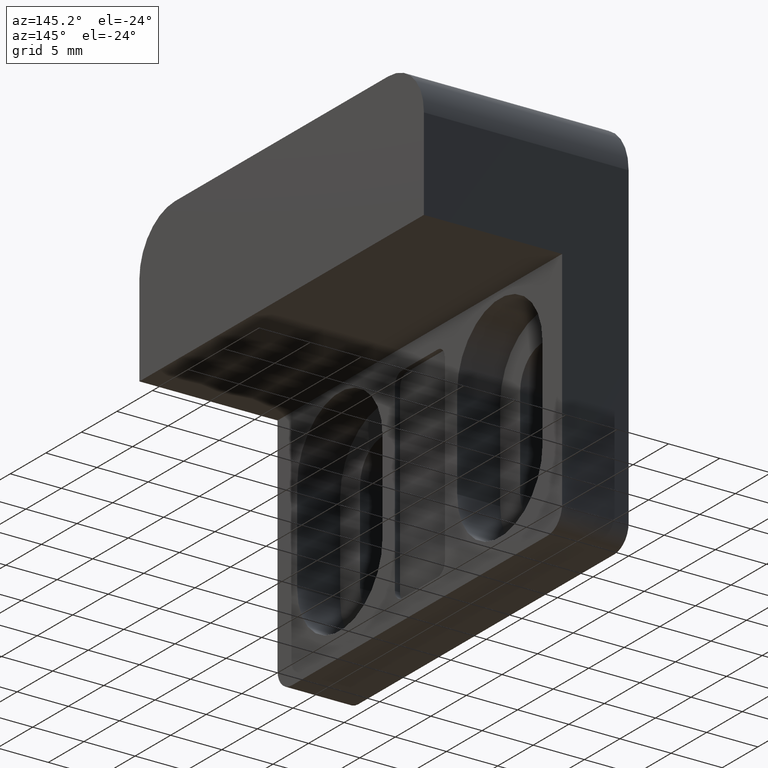
[diagram: clean part render]
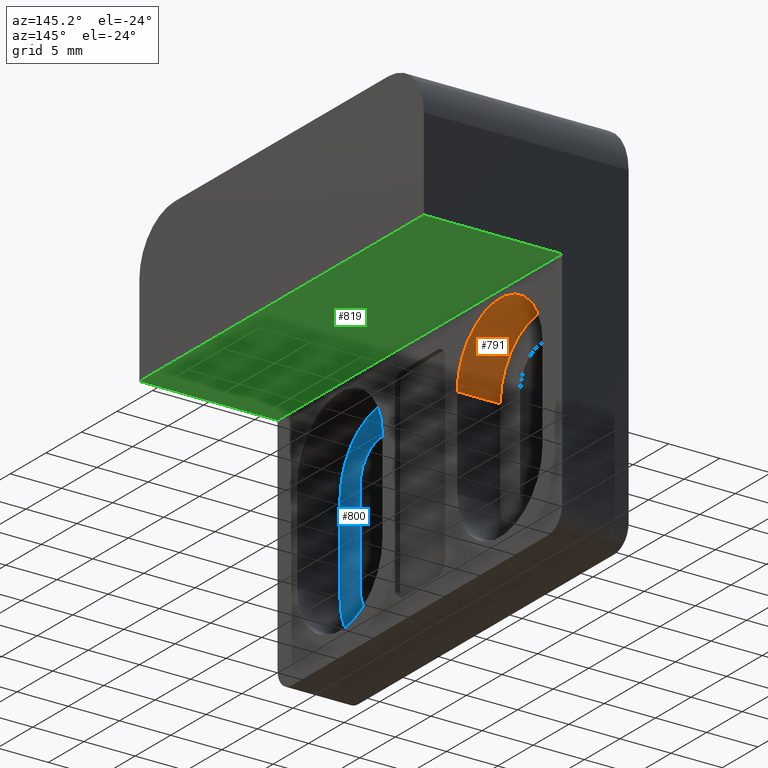
[diagram: same view with three faces highlighted in distinct colors, each labeled with its STEP entity id]
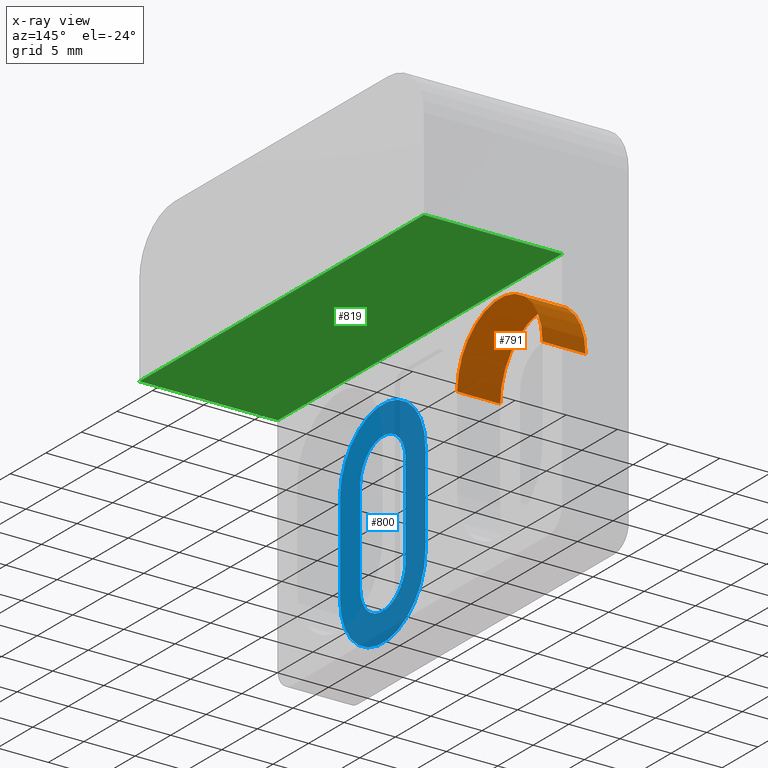
[diagram: x-ray of the same camera — body ghosted, the three highlighted faces saturated]
A machine part, auxiliary view with three faces highlighted in distinct colors.
The next image is the same camera in x-ray (body ghosted, the three faces saturated) — at least one of them is partly hidden behind the body in this view.
Their STEP definitions:

[orange] entity #791 — the highlighted cylindrical surface (partial cylindrical patch) has radius 6 mm, axis along (-1, 0, 0).
#31=CIRCLE('',#846,6.);
#32=CIRCLE('',#847,6.);
#59=CYLINDRICAL_SURFACE('',#845,6.);
#85=FACE_OUTER_BOUND('',#129,.T.);
#129=EDGE_LOOP('',(#581,#582,#583,#584));
#195=LINE('',#1215,#277);
#196=LINE('',#1218,#278);
#277=VECTOR('',#977,4.2);
#278=VECTOR('',#980,4.2);
#355=VERTEX_POINT('',#1211);
#356=VERTEX_POINT('',#1212);
#357=VERTEX_POINT('',#1214);
#358=VERTEX_POINT('',#1216);
#443=EDGE_CURVE('',#355,#356,#31,.T.);
#444=EDGE_CURVE('',#355,#357,#195,.T.);
#445=EDGE_CURVE('',#357,#358,#32,.T.);
#446=EDGE_CURVE('',#356,#358,#196,.T.);
#581=ORIENTED_EDGE('',*,*,#443,.F.);
#582=ORIENTED_EDGE('',*,*,#444,.T.);
#583=ORIENTED_EDGE('',*,*,#445,.T.);
#584=ORIENTED_EDGE('',*,*,#446,.F.);
#791=ADVANCED_FACE('',(#85),#59,.F.);
#845=AXIS2_PLACEMENT_3D('',#1210,#973,#974);
#846=AXIS2_PLACEMENT_3D('',#1213,#975,#976);
#847=AXIS2_PLACEMENT_3D('',#1217,#978,#979);
#973=DIRECTION('center_axis',(-1.,0.,0.));
#974=DIRECTION('ref_axis',(0.,1.,0.));
#975=DIRECTION('center_axis',(-1.,0.,1.8503717077086E-16));
#976=DIRECTION('ref_axis',(0.,1.,0.));
#977=DIRECTION('',(-1.,0.,0.));
#978=DIRECTION('center_axis',(-1.,0.,1.8503717077086E-16));
#979=DIRECTION('ref_axis',(0.,1.,0.));
#980=DIRECTION('',(-1.,0.,0.));
#1210=CARTESIAN_POINT('Origin',(-13.5,11.25,-20.7));
#1211=CARTESIAN_POINT('',(-13.5,5.25,-20.7));
#1212=CARTESIAN_POINT('',(-13.5,17.25,-20.7));
#1213=CARTESIAN_POINT('Origin',(-13.5,11.25,-20.7));
#1214=CARTESIAN_POINT('',(-17.7,5.25,-20.7));
#1215=CARTESIAN_POINT('',(-13.5,5.25,-20.7));
#1216=CARTESIAN_POINT('',(-17.7,17.25,-20.7));
#1217=CARTESIAN_POINT('Origin',(-17.7,11.25,-20.7));
#1218=CARTESIAN_POINT('',(-13.5,17.25,-20.7));

[blue] entity #800 — the highlighted planar face has unit normal (1, -0, -0).
#16=FACE_BOUND('',#140,.T.);
#38=CIRCLE('',#858,6.00000000000001);
#40=CIRCLE('',#862,6.);
#41=CIRCLE('',#865,3.2);
#42=CIRCLE('',#866,3.2);
#94=FACE_OUTER_BOUND('',#139,.T.);
#139=EDGE_LOOP('',(#621,#622,#623,#624));
#140=EDGE_LOOP('',(#625,#626,#627,#628));
#209=LINE('',#1257,#291);
#212=LINE('',#1266,#294);
#213=LINE('',#1270,#295);
#214=LINE('',#1274,#296);
#291=VECTOR('',#1017,9.);
#294=VECTOR('',#1028,9.);
#295=VECTOR('',#1031,9.);
#296=VECTOR('',#1034,9.);
#369=VERTEX_POINT('',#1247);
#370=VERTEX_POINT('',#1249);
#372=VERTEX_POINT('',#1255);
#374=VERTEX_POINT('',#1261);
#375=VERTEX_POINT('',#1268);
#376=VERTEX_POINT('',#1269);
#377=VERTEX_POINT('',#1271);
#378=VERTEX_POINT('',#1273);
#461=EDGE_CURVE('',#369,#370,#38,.T.);
#465=EDGE_CURVE('',#372,#369,#209,.T.);
#468=EDGE_CURVE('',#374,#372,#40,.T.);
#470=EDGE_CURVE('',#370,#374,#212,.T.);
#471=EDGE_CURVE('',#375,#376,#213,.T.);
#472=EDGE_CURVE('',#377,#375,#41,.T.);
#473=EDGE_CURVE('',#378,#377,#214,.T.);
#474=EDGE_CURVE('',#376,#378,#42,.T.);
#621=ORIENTED_EDGE('',*,*,#470,.F.);
#622=ORIENTED_EDGE('',*,*,#461,.F.);
#623=ORIENTED_EDGE('',*,*,#465,.F.);
#624=ORIENTED_EDGE('',*,*,#468,.F.);
#625=ORIENTED_EDGE('',*,*,#471,.F.);
#626=ORIENTED_EDGE('',*,*,#472,.F.);
#627=ORIENTED_EDGE('',*,*,#473,.F.);
#628=ORIENTED_EDGE('',*,*,#474,.F.);
#764=PLANE('',#864);
#800=ADVANCED_FACE('',(#94,#16),#764,.T.);
#858=AXIS2_PLACEMENT_3D('',#1250,#1010,#1011);
#862=AXIS2_PLACEMENT_3D('',#1263,#1023,#1024);
#864=AXIS2_PLACEMENT_3D('',#1267,#1029,#1030);
#865=AXIS2_PLACEMENT_3D('',#1272,#1032,#1033);
#866=AXIS2_PLACEMENT_3D('',#1275,#1035,#1036);
#1010=DIRECTION('center_axis',(-1.,0.,1.8503717077086E-16));
#1011=DIRECTION('ref_axis',(-6.84775091337684E-32,1.,-3.70074341541719E-16));
#1017=DIRECTION('',(1.8503717077086E-16,1.2335811384724E-16,1.));
#1023=DIRECTION('center_axis',(-1.,0.,1.8503717077086E-16));
#1024=DIRECTION('ref_axis',(6.84775091337683E-32,-1.,3.70074341541718E-16));
#1028=DIRECTION('',(-1.8503717077086E-16,-4.93432455388958E-16,-1.));
#1029=DIRECTION('center_axis',(1.,-5.55111512312578E-17,-1.85037170770859E-16));
#1030=DIRECTION('ref_axis',(-3.5527136788005E-16,0.,-1.));
#1031=DIRECTION('',(-1.8503717077086E-16,-2.46716227694479E-16,-1.));
#1032=DIRECTION('center_axis',(1.,-5.55111512312578E-17,-1.85037170770859E-16));
#1033=DIRECTION('ref_axis',(0.,-1.,0.));
#1034=DIRECTION('',(1.85037170770859E-16,0.,1.));
#1035=DIRECTION('center_axis',(1.,-5.55111512312578E-17,-1.85037170770859E-16));
#1036=DIRECTION('ref_axis',(0.,1.,0.));
#1247=CARTESIAN_POINT('',(-17.7,-17.25,-20.7));
#1249=CARTESIAN_POINT('',(-17.7,-5.25,-20.7));
#1250=CARTESIAN_POINT('Origin',(-17.7,-11.25,-20.7));
#1255=CARTESIAN_POINT('',(-17.7,-17.25,-29.7));
#1257=CARTESIAN_POINT('',(-17.7,-17.25,-20.7));
#1261=CARTESIAN_POINT('',(-17.7,-5.25000000000001,-29.7));
#1263=CARTESIAN_POINT('Origin',(-17.7,-11.25,-29.7));
#1266=CARTESIAN_POINT('',(-17.7,-5.25000000000001,-29.7));
#1267=CARTESIAN_POINT('Origin',(-17.7,-11.25,-25.2));
#1268=CARTESIAN_POINT('',(-17.7,-14.45,-20.7));
#1269=CARTESIAN_POINT('',(-17.7,-14.45,-29.7));
#1270=CARTESIAN_POINT('',(-17.7,-14.45,-27.45));
#1271=CARTESIAN_POINT('',(-17.7,-8.05,-20.7));
#1272=CARTESIAN_POINT('Origin',(-17.7,-11.25,-20.7));
#1273=CARTESIAN_POINT('',(-17.7,-8.05,-29.7));
#1274=CARTESIAN_POINT('',(-17.7,-8.05,-22.95));
#1275=CARTESIAN_POINT('Origin',(-17.7,-11.25,-29.7));

[green] entity #819 — the highlighted planar face has unit normal (-0, 0, -1).
#113=FACE_OUTER_BOUND('',#165,.T.);
#165=EDGE_LOOP('',(#741,#742,#743,#744));
#239=LINE('',#1349,#321);
#243=LINE('',#1358,#325);
#247=LINE('',#1365,#329);
#248=LINE('',#1367,#330);
#321=VECTOR('',#1111,13.5);
#325=VECTOR('',#1119,40.);
#329=VECTOR('',#1127,13.5);
#330=VECTOR('',#1130,40.);
#401=VERTEX_POINT('',#1346);
#402=VERTEX_POINT('',#1348);
#405=VERTEX_POINT('',#1356);
#406=VERTEX_POINT('',#1363);
#510=EDGE_CURVE('',#401,#402,#239,.T.);
#515=EDGE_CURVE('',#401,#405,#243,.T.);
#519=EDGE_CURVE('',#406,#405,#247,.T.);
#520=EDGE_CURVE('',#402,#406,#248,.T.);
#741=ORIENTED_EDGE('',*,*,#520,.F.);
#742=ORIENTED_EDGE('',*,*,#510,.F.);
#743=ORIENTED_EDGE('',*,*,#515,.T.);
#744=ORIENTED_EDGE('',*,*,#519,.F.);
#775=PLANE('',#897);
#819=ADVANCED_FACE('',(#113),#775,.T.);
#897=AXIS2_PLACEMENT_3D('',#1368,#1131,#1132);
#1111=DIRECTION('',(-1.,0.,4.93432455388959E-16));
#1119=DIRECTION('',(0.,-1.,0.));
#1127=DIRECTION('',(1.,0.,-4.93432455388959E-16));
#1130=DIRECTION('',(0.,-1.,0.));
#1131=DIRECTION('center_axis',(-4.93432455388959E-16,0.,-1.));
#1132=DIRECTION('ref_axis',(-1.,0.,5.32907051820075E-16));
#1346=CARTESIAN_POINT('',(-6.66133814775094E-15,20.,-14.));
#1348=CARTESIAN_POINT('',(-13.5,20.,-14.));
#1349=CARTESIAN_POINT('',(-13.5,20.,-14.));
#1356=CARTESIAN_POINT('',(-6.66133814775094E-15,-20.,-14.));
#1358=CARTESIAN_POINT('',(-6.66133814775094E-15,0.,-14.));
#1363=CARTESIAN_POINT('',(-13.5,-20.,-14.));
#1365=CARTESIAN_POINT('',(-13.5,-20.,-14.));
#1367=CARTESIAN_POINT('',(-13.5,0.,-14.));
#1368=CARTESIAN_POINT('Origin',(-6.66133814775094E-15,0.,-14.));